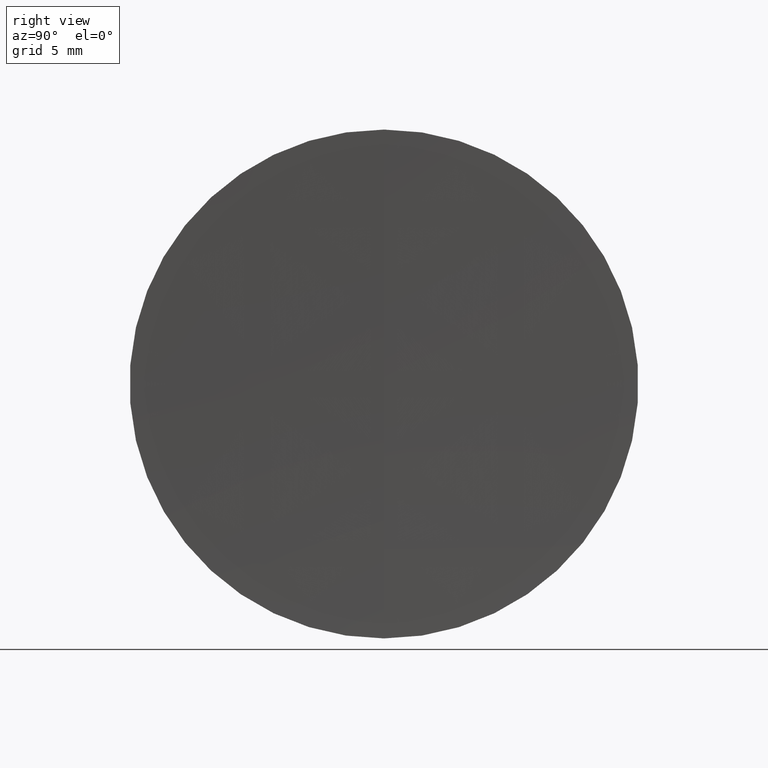
[diagram: clean part render]
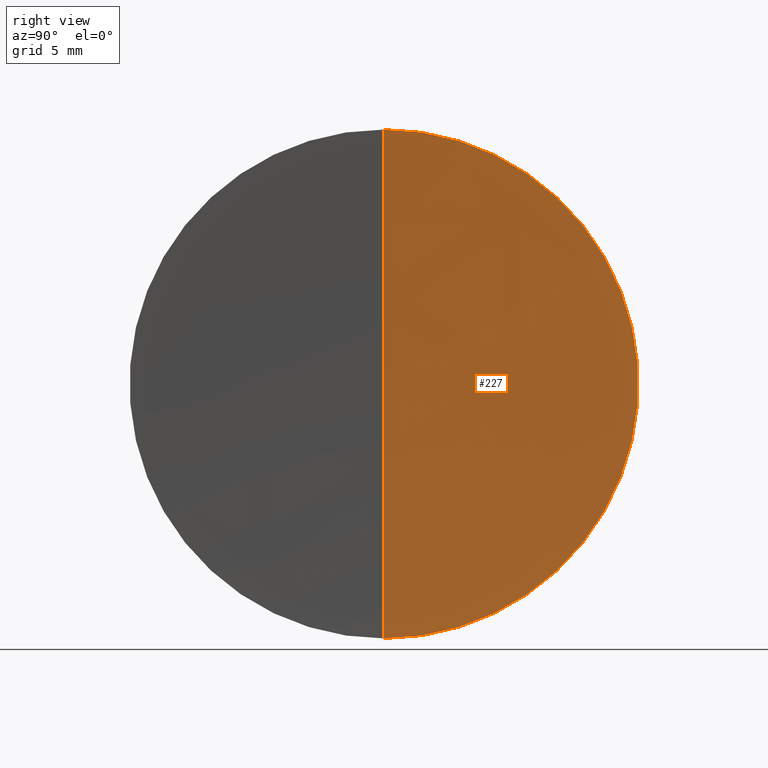
[diagram: same view with one face highlighted and labeled with its STEP entity id]
A machine part, right view. The second image highlights one B-rep face of the part: STEP entity #227.
In plain terms, the highlighted spherical surface has radius 417.8 mm.
Its self-contained STEP definition (entity closure, byte-faithful):
#3 = EDGE_CURVE ( 'NONE', #231, #253, #102, .T. ) ;
#18 = CARTESIAN_POINT ( 'NONE',  ( 307.0473420726939900, 0.0000000000000000000, 0.0000000000000000000 ) ) ;
#20 = CARTESIAN_POINT ( 'NONE',  ( 724.6542744864173100, 0.0000000000000000000, 0.0000000000000000000 ) ) ;
#28 = CARTESIAN_POINT ( 'NONE',  ( 307.0473420726939900, 0.0000000000000000000, 12.69999999999999900 ) ) ;
#31 = CARTESIAN_POINT ( 'NONE',  ( 306.8542744864172400, 0.0000000000000000000, -2.558287163418821000E-014 ) ) ;
#32 = EDGE_CURVE ( 'NONE', #82, #253, #240, .T. ) ;
#63 = EDGE_LOOP ( 'NONE', ( #198, #214, #168 ) ) ;
#82 = VERTEX_POINT ( 'NONE', #101 ) ;
#101 = CARTESIAN_POINT ( 'NONE',  ( 307.0473420726939900, 1.555301434917138800E-015, -12.69999999999999900 ) ) ;
#102 = CIRCLE ( 'NONE', #304, 417.8000000000000700 ) ;
#158 = DIRECTION ( 'NONE',  ( 0.0000000000000000000, 1.224646799147353000E-016, -1.000000000000000000 ) ) ;
#168 = ORIENTED_EDGE ( 'NONE', *, *, #32, .F. ) ;
#173 = CARTESIAN_POINT ( 'NONE',  ( 724.6542744864173100, 0.0000000000000000000, 0.0000000000000000000 ) ) ;
#177 = DIRECTION ( 'NONE',  ( -1.000000000000000000, -0.0000000000000000000, -0.0000000000000000000 ) ) ;
#179 = DIRECTION ( 'NONE',  ( 0.0000000000000000000, 1.000000000000000000, -0.0000000000000000000 ) ) ;
#183 = DIRECTION ( 'NONE',  ( 0.0000000000000000000, -1.000000000000000000, -1.224646799147353200E-016 ) ) ;
#188 = FACE_OUTER_BOUND ( 'NONE', #63, .T. ) ;
#190 = DIRECTION ( 'NONE',  ( 0.0000000000000000000, 0.0000000000000000000, -1.000000000000000000 ) ) ;
#198 = ORIENTED_EDGE ( 'NONE', *, *, #322, .F. ) ;
#214 = ORIENTED_EDGE ( 'NONE', *, *, #3, .T. ) ;
#227 = ADVANCED_FACE ( 'NONE', ( #188 ), #347, .F. ) ;
#231 = VERTEX_POINT ( 'NONE', #28 ) ;
#240 = CIRCLE ( 'NONE', #342, 417.8000000000000700 ) ;
#244 = DIRECTION ( 'NONE',  ( -0.0000000000000000000, -1.000000000000000000, -0.0000000000000000000 ) ) ;
#253 = VERTEX_POINT ( 'NONE', #31 ) ;
#278 = AXIS2_PLACEMENT_3D ( 'NONE', #18, #177, #336 ) ;
#288 = CARTESIAN_POINT ( 'NONE',  ( 724.6542744864173100, 0.0000000000000000000, 0.0000000000000000000 ) ) ;
#304 = AXIS2_PLACEMENT_3D ( 'NONE', #288, #183, #158 ) ;
#322 = EDGE_CURVE ( 'NONE', #231, #82, #338, .T. ) ;
#328 = AXIS2_PLACEMENT_3D ( 'NONE', #173, #244, #190 ) ;
#336 = DIRECTION ( 'NONE',  ( 0.0000000000000000000, 0.0000000000000000000, 1.000000000000000000 ) ) ;
#338 = CIRCLE ( 'NONE', #278, 12.69999999999999900 ) ;
#340 = DIRECTION ( 'NONE',  ( 0.0000000000000000000, 0.0000000000000000000, 1.000000000000000000 ) ) ;
#342 = AXIS2_PLACEMENT_3D ( 'NONE', #20, #179, #340 ) ;
#347 = SPHERICAL_SURFACE ( 'NONE', #328, 417.8000000000000700 ) ;